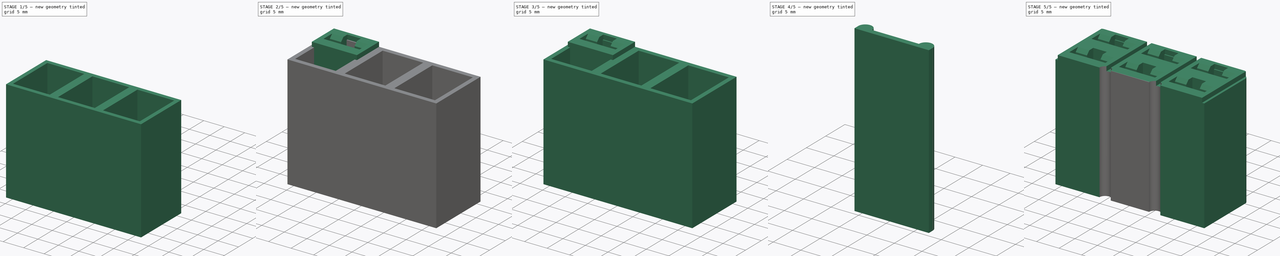
[diagram: build sequence overview — one tinted view per stage of 5, left to right]
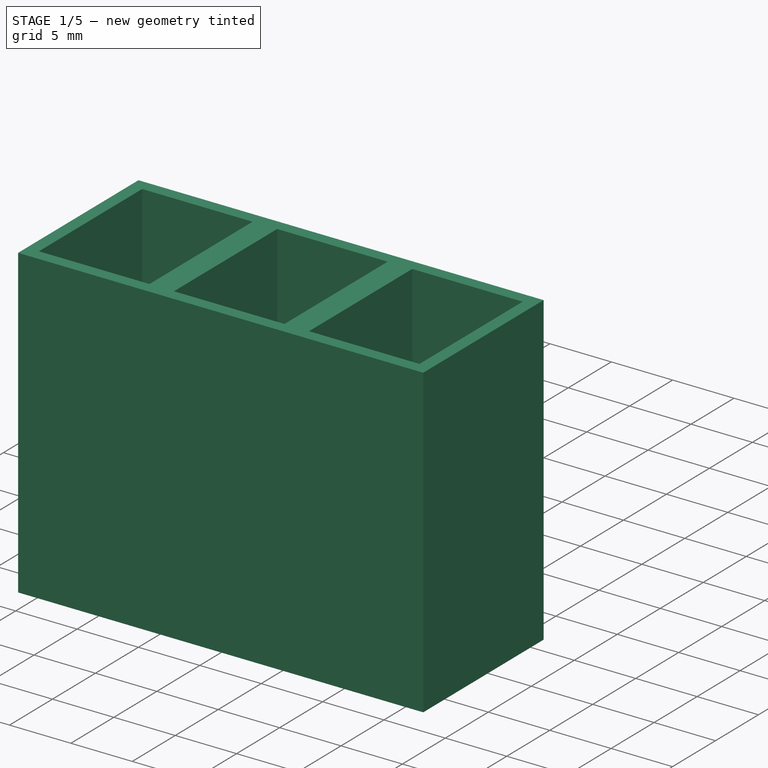
[diagram: stage 1 of 5 — iso view after this stage's code; geometry added in this stage tinted green]
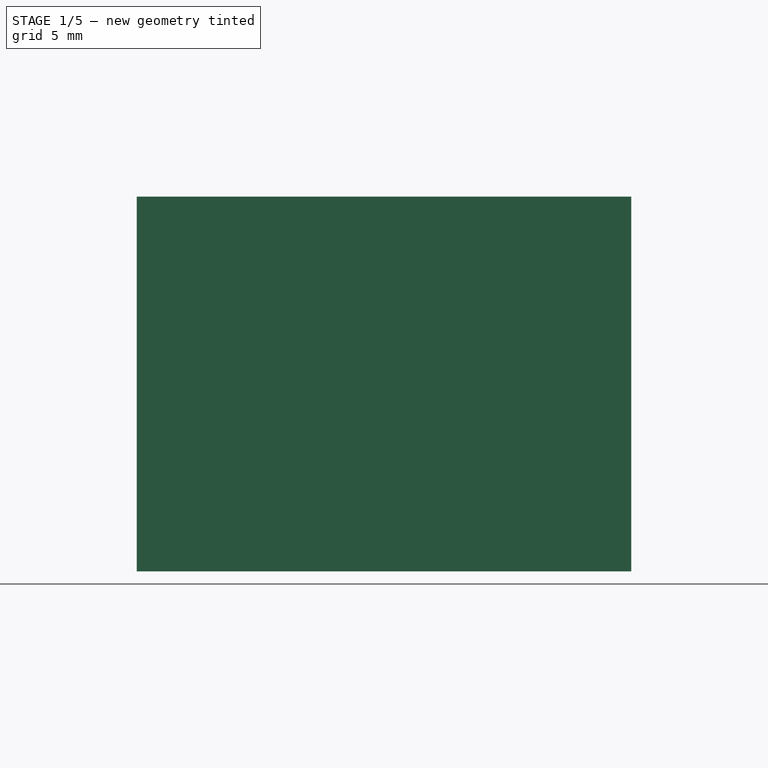
[diagram: stage 1 of 5 — front view after this stage's code; geometry added in this stage tinted green]
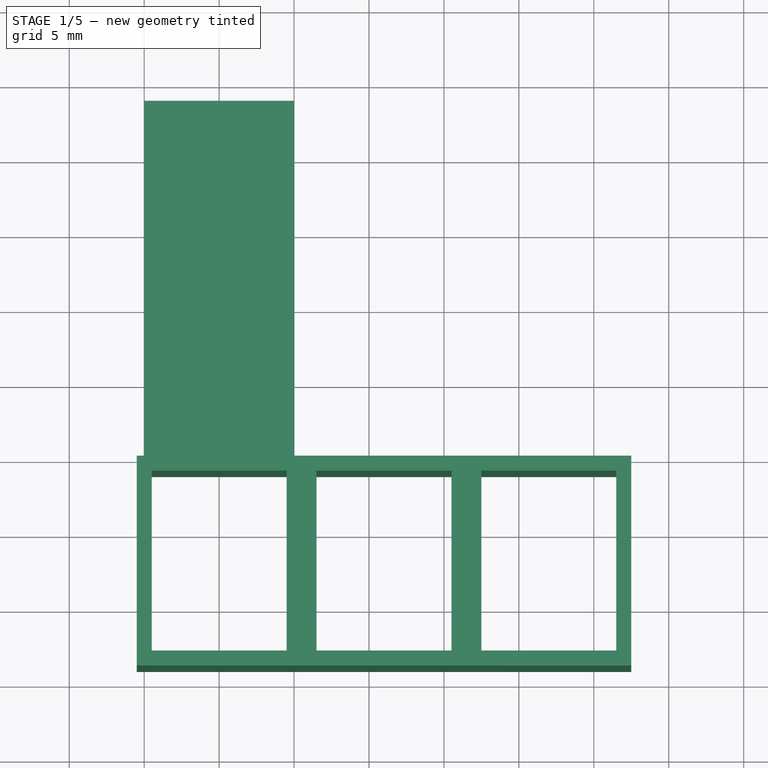
[diagram: stage 1 of 5 — top view after this stage's code; geometry added in this stage tinted green]
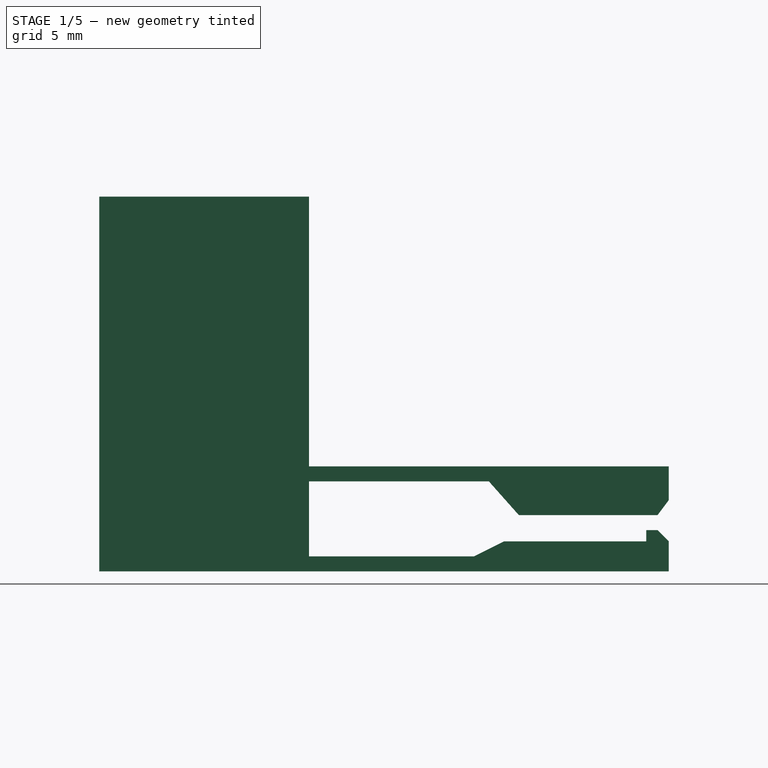
[diagram: stage 1 of 5 — right view after this stage's code; geometry added in this stage tinted green]
FCSTD DOCUMENT  (FreeCAD 1.0R39109 (Git))
Label: DipPlug
License: All rights reserved
LicenseURL: http://en.wikipedia.org/wiki/All_rights_reserved
objects: Sketcher::SketchObject×8, PartDesign::Body×8, PartDesign::FeatureBase×6, PartDesign::Pad×3, PartDesign::Pocket×3, Part::Extrusion×2, Part::Cut×2, Part::MultiFuse×1
note: 59 computed .brp shape members not serialized (recipe doc carries the construction recipe); baked Part::Feature solids carry a one-line shape summary decoded from their .brp

FEATURE [Sketcher::SketchObject] Sketch009  label="SideProfile"
  ArcFitTolerance = 1e-06
  AttachmentSupport = -> [YZ_Plane002]
  FullyConstrained = true
  MakeInternals = false
  MapMode = 5
  Placement = pos=(0,0,0) rot=(0.57735,0.57735,0.57735;2.0944rad)
  sketch-geometry (17):
    g0: LineSegment StartX=0 StartY=0 StartZ=0 EndX=0 EndY=1 EndZ=0
    g1: LineSegment StartX=0 StartY=1 StartZ=0 EndX=11 EndY=1 EndZ=0
    g2: LineSegment StartX=0 StartY=0 StartZ=0 EndX=24 EndY=0 EndZ=0
    g3: LineSegment StartX=11 StartY=1 StartZ=0 EndX=13 EndY=2 EndZ=0
    g4: LineSegment StartX=13 StartY=2 StartZ=0 EndX=22.5 EndY=2 EndZ=0
    g5: LineSegment StartX=22.5 StartY=2 StartZ=0 EndX=22.5 EndY=2.75 EndZ=0
    g6: LineSegment StartX=22.5 StartY=2.75 StartZ=0 EndX=23.25 EndY=2.75 EndZ=0
    g7: LineSegment StartX=23.25 StartY=2.75 StartZ=0 EndX=24 EndY=2 EndZ=0
    g8: LineSegment StartX=24 StartY=2 StartZ=0 EndX=24 EndY=0 EndZ=0
    g9: LineSegment StartX=0 StartY=6 StartZ=0 EndX=12 EndY=6 EndZ=0
    g10: LineSegment StartX=12 StartY=6 StartZ=0 EndX=14 EndY=3.75 EndZ=0
    g11: LineSegment StartX=14 StartY=3.75 StartZ=0 EndX=23.25 EndY=3.75 EndZ=0
    g12: LineSegment StartX=23.25 StartY=3.75 StartZ=0 EndX=24 EndY=4.75 EndZ=0
    g13: LineSegment StartX=24 StartY=4.75 StartZ=0 EndX=24 EndY=7 EndZ=0
    g14: LineSegment StartX=24 StartY=7 StartZ=0 EndX=0 EndY=7 EndZ=0
    g15: LineSegment StartX=0 StartY=7 StartZ=0 EndX=0 EndY=6 EndZ=0
    g16: LineSegment [constr] StartX=23.25 StartY=2.75 StartZ=0 EndX=23.25 EndY=3.75 EndZ=0
  constraints (51):
    c: Coincident(g0,g-1)
    c: PointOnObject(g0,g-2)
    c: Coincident(g1,g0)
    c: Horizontal(g1)
    c: Coincident(g2,g0)
    c: PointOnObject(g2,g-1)
    c: Coincident(g3,g1)
    c: Coincident(g4,g3)
    c: Horizontal(g4)
    c: Coincident(g5,g4)
    c: Vertical(g5)
    c: Coincident(g6,g5)
    c: Horizontal(g6)
    c: Coincident(g7,g6)
    c: Coincident(g8,g7)
    c: Vertical(g8)
    c: Coincident(g2,g8)
    c: DistanceX(g2,g2) = 24
    c: Distance(g0,g0) = 1
    c: Distance(g1,g1) = 11
    c: DistanceX(g0,g3) = 13
    c: DistanceY(g0,g3) = 2
    c: DistanceY(g8,g8) = 2
    c: DistanceY(g2,g6) = 2.75
    c: DistanceX(g6,g7) = 0.75
    c: PointOnObject(g9,g-2)
    c: Horizontal(g9)
    c: Coincident(g10,g9)
    c: Coincident(g11,g10)
    c: Horizontal(g11)
    c: Coincident(g12,g11)
    c: Coincident(g13,g12)
    c: Vertical(g13)
    c: Coincident(g14,g13)
    c: PointOnObject(g14,g-2)
    c: Horizontal(g14)
    c: Coincident(g15,g14)
    c: Coincident(g15,g9)
    c: Distance(g15,g15) = 1
    c: DistanceX(g9,g9) = 12
    c: DistanceX(g9,g10) = 14
    c: Vertical(g11,g6)
    c: DistanceY(g11,g12) = 1
    c: DistanceY(g10,g9) = 2.25
    c: Vertical(g13,g2)
    c: DistanceY(g0,g9) = 5
    c: DistanceX(g4,g4) = 9.5
    c: Coincident(g16,g6)
    c: Coincident(g16,g11)
    c: DistanceY(g16,g16) = 1
    c: DistanceY(g4,g11) = 1.75
FEATURE [PartDesign::Pad] Pad003  label="SideProfilePad"
  Direction = (1,0,0)
  Length = 10
  Length2 = 10
  Placement = pos=(0,0,0) rot=(1,1,1;2.0944rad)
  Profile = -> Sketch009
  ReferenceAxis = -> Sketch009 [N_Axis]
  Refine = true
  Suppressed = false
  Type = 0
FEATURE [PartDesign::Body] Body007  label="Pin6"
  AllowCompound = false
  Group = -> [Clone005]
  Origin = -> Origin007
  Placement = pos=(22,-7,0) rot=(0,0,1;0rad)
  Tip = -> Clone005
FEATURE [Sketcher::SketchObject] Sketch
  ArcFitTolerance = 1e-06
  AttachmentSupport = -> [XY_Plane008]
  FullyConstrained = true
  MakeInternals = false
  MapMode = 5
  sketch-geometry (4):
    g0: LineSegment StartX=-0.5 StartY=0 StartZ=0 EndX=-0.5 EndY=-14 EndZ=0
    g1: LineSegment StartX=-0.5 StartY=-14 StartZ=0 EndX=32.5 EndY=-14 EndZ=0
    g2: LineSegment StartX=32.5 StartY=-14 StartZ=0 EndX=32.5 EndY=0 EndZ=0
    g3: LineSegment StartX=32.5 StartY=0 StartZ=0 EndX=-0.5 EndY=0 EndZ=0
  constraints (12):
    c: Coincident(g0,g1)
    c: Coincident(g1,g2)
    c: Coincident(g2,g3)
    c: Coincident(g3,g0)
    c: Vertical(g0)
    c: Vertical(g2)
    c: Horizontal(g1)
    c: Horizontal(g3)
    c: DistanceX(g1,g1) = 33
    c: DistanceY(g2,g2) = 14
    c: PointOnObject(g0,g-1)
    c: Distance(g-1,g0) = 0.5
FEATURE [PartDesign::Pad] Pad
  Direction = (0,0,1)
  Length = 25
  Length2 = 10
  Profile = -> Sketch
  ReferenceAxis = -> Sketch [N_Axis]
  Refine = true
  Suppressed = false
  Type = 0
FEATURE [Sketcher::SketchObject] Sketch012
  ArcFitTolerance = 1e-06
  AttachmentSupport = -> [XY_Plane008]
  ExternalGeometry = -> [Pad]
  FullyConstrained = true
  MakeInternals = false
  MapMode = 5
  sketch-geometry (12):
    g0: LineSegment StartX=0.5 StartY=-1 StartZ=0 EndX=0.5 EndY=-13 EndZ=0
    g1: LineSegment StartX=0.5 StartY=-13 StartZ=0 EndX=9.5 EndY=-13 EndZ=0
    g2: LineSegment StartX=9.5 StartY=-13 StartZ=0 EndX=9.5 EndY=-1 EndZ=0
    g3: LineSegment StartX=9.5 StartY=-1 StartZ=0 EndX=0.5 EndY=-1 EndZ=0
    g4: LineSegment StartX=11.5 StartY=-1 StartZ=0 EndX=11.5 EndY=-13 EndZ=0
    g5: LineSegment StartX=11.5 StartY=-13 StartZ=0 EndX=20.5 EndY=-13 EndZ=0
    g6: LineSegment StartX=20.5 StartY=-13 StartZ=0 EndX=20.5 EndY=-1 EndZ=0
    g7: LineSegment StartX=20.5 StartY=-1 StartZ=0 EndX=11.5 EndY=-1 EndZ=0
    g8: LineSegment StartX=22.5 StartY=-1 StartZ=0 EndX=22.5 EndY=-13 EndZ=0
    g9: LineSegment StartX=22.5 StartY=-13 StartZ=0 EndX=31.5 EndY=-13 EndZ=0
    g10: LineSegment StartX=31.5 StartY=-13 StartZ=0 EndX=31.5 EndY=-1 EndZ=0
    g11: LineSegment StartX=31.5 StartY=-1 StartZ=0 EndX=22.5 EndY=-1 EndZ=0
  constraints (36):
    c: Coincident(g0,g1)
    c: Coincident(g1,g2)
    c: Coincident(g2,g3)
    c: Coincident(g3,g0)
    c: Vertical(g2)
    c: Horizontal(g1)
    c: Horizontal(g3)
    c: DistanceX(g3,g3) = 9
    c: DistanceY(g-3,g0) = 1
    c: Coincident(g4,g5)
    c: Coincident(g5,g6)
    c: Coincident(g6,g7)
    c: Coincident(g7,g4)
    c: Vertical(g4)
    c: Vertical(g6)
    c: Horizontal(g5)
    c: Horizontal(g7)
    c: Coincident(g8,g9)
    c: Coincident(g9,g10)
    c: Coincident(g10,g11)
    c: Coincident(g11,g8)
    c: Vertical(g8)
    c: Vertical(g10)
    c: Horizontal(g9)
    c: Horizontal(g11)
    c: Horizontal(g8,g4)
    c: Horizontal(g4,g0)
    c: Horizontal(g8,g4)
    c: Horizontal(g4,g0)
    c: Equal(g1,g5)
    c: Equal(g5,g9)
    c: Distance(g1,g4) = 2
    c: Distance(g8,g5) = 2
    c: DistanceX(g-1,g0) = 0.5
    c: DistanceY(g0,g-1) = 1
    c: Vertical(g0)
FEATURE [PartDesign::Pocket] Pocket
  BaseFeature = -> Pad
  Direction = (0,0,-1)
  Length = 5
  Length2 = 5
  Profile = -> Sketch012
  ReferenceAxis = -> Sketch012 [N_Axis]
  Refine = true
  Reversed = true
  Suppressed = false
  Type = 1
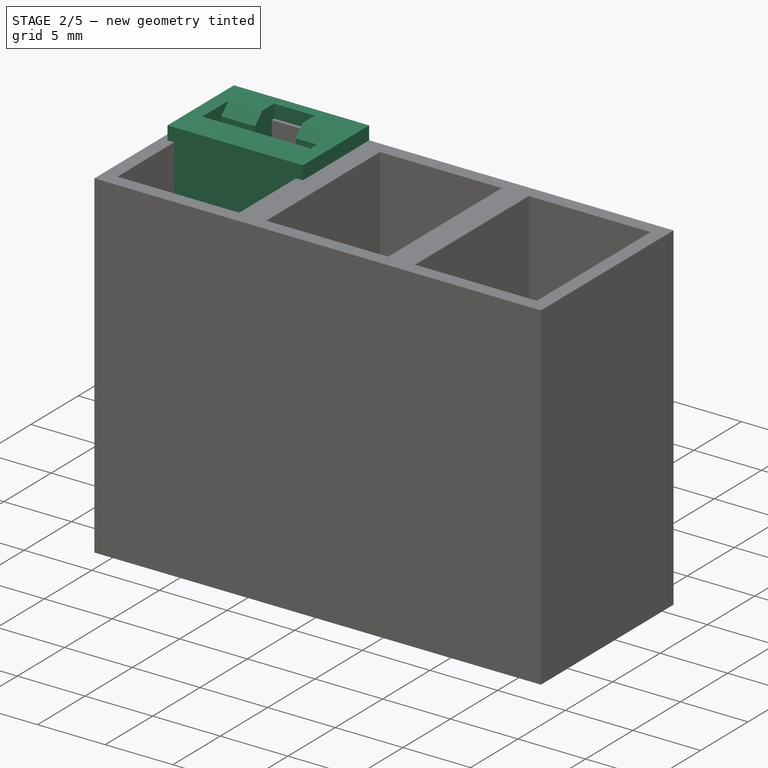
[diagram: stage 2 of 5 — iso view after this stage's code; geometry added in this stage tinted green]
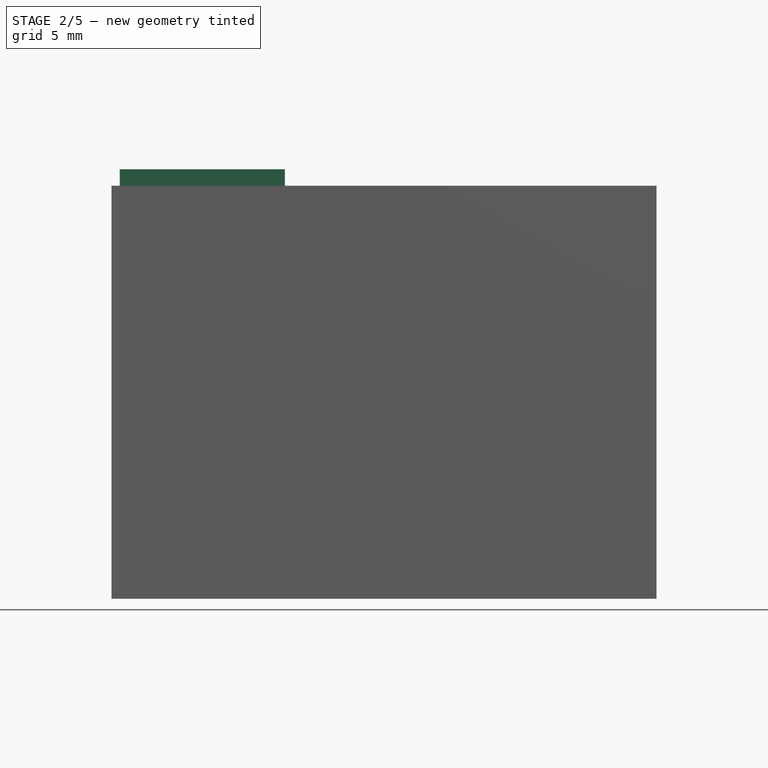
[diagram: stage 2 of 5 — front view after this stage's code; geometry added in this stage tinted green]
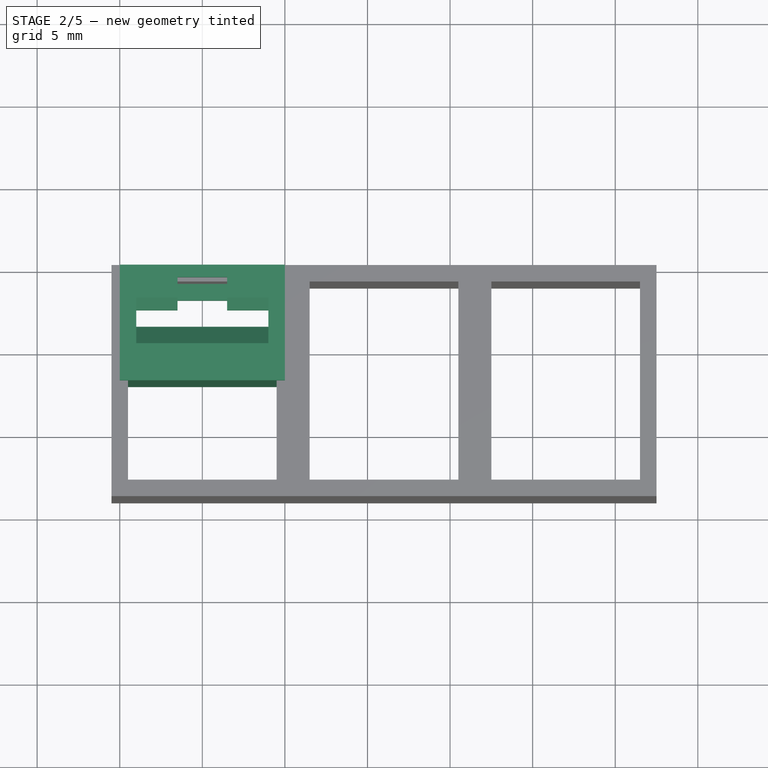
[diagram: stage 2 of 5 — top view after this stage's code; geometry added in this stage tinted green]
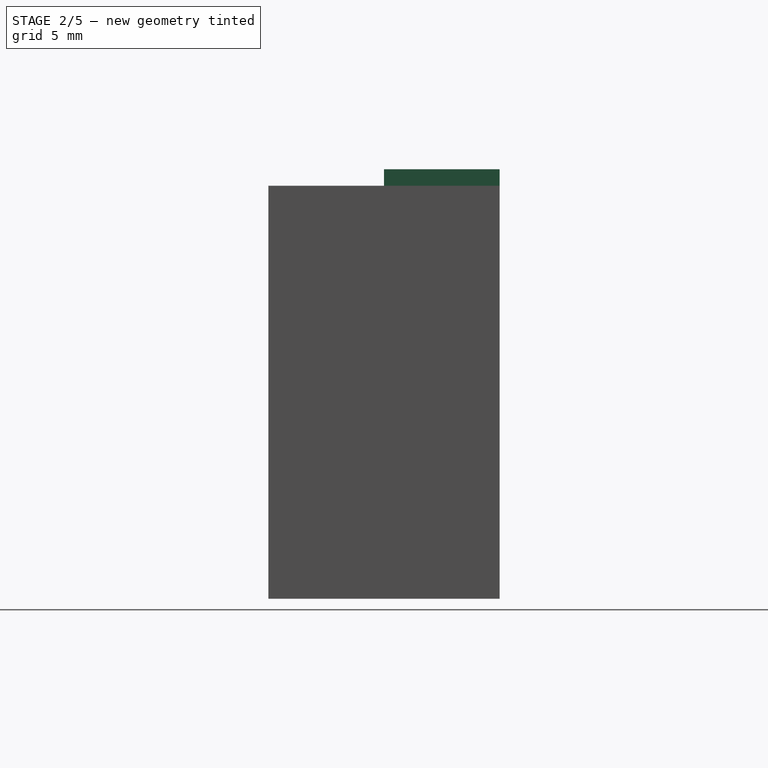
[diagram: stage 2 of 5 — right view after this stage's code; geometry added in this stage tinted green]
FEATURE [Sketcher::SketchObject] Sketch010  label="Sides"
  ArcFitTolerance = 1e-06
  AttachmentSupport = -> [XY_Plane002]
  ExternalGeometry = -> [Pad003]
  FullyConstrained = true
  MakeInternals = false
  MapMode = 5
  sketch-geometry (8):
    g0: LineSegment StartX=-3e-15 StartY=24 StartZ=0 EndX=-3e-15 EndY=0 EndZ=0
    g1: LineSegment StartX=-3e-15 StartY=0 StartZ=0 EndX=1 EndY=0 EndZ=0
    g2: LineSegment StartX=1 StartY=0 StartZ=0 EndX=1 EndY=24 EndZ=0
    g3: LineSegment StartX=1 StartY=24 StartZ=0 EndX=-3e-15 EndY=24 EndZ=0
    g4: LineSegment StartX=10 StartY=24 StartZ=0 EndX=9 EndY=24 EndZ=0
    g5: LineSegment StartX=9 StartY=24 StartZ=0 EndX=9 EndY=0 EndZ=0
    g6: LineSegment StartX=9 StartY=0 StartZ=0 EndX=10 EndY=0 EndZ=0
    g7: LineSegment StartX=10 StartY=0 StartZ=0 EndX=10 EndY=24 EndZ=0
  constraints (22):
    c: Coincident(g0,g1)
    c: Coincident(g1,g2)
    c: Coincident(g2,g3)
    c: Coincident(g3,g0)
    c: Vertical(g0)
    c: Vertical(g2)
    c: Horizontal(g1)
    c: Horizontal(g3)
    c: Coincident(g0,g-3)
    c: PointOnObject(g1,g-1)
    c: Coincident(g4,g5)
    c: Coincident(g5,g6)
    c: Coincident(g6,g7)
    c: Coincident(g7,g4)
    c: Horizontal(g4)
    c: Horizontal(g6)
    c: Vertical(g5)
    c: Vertical(g7)
    c: Coincident(g4,g-4)
    c: PointOnObject(g5,g-1)
    c: Distance(g6,g6) = 1
    c: Distance(g1,g1) = 1
FEATURE [PartDesign::Pad] Pad004  label="SidesPad"
  BaseFeature = -> Pad003
  Direction = (0,0,1)
  Length = 6
  Length2 = 10
  Placement = pos=(0,0,0) rot=(1,1,1;2.0944rad)
  Profile = -> Sketch010
  ReferenceAxis = -> Sketch010 [N_Axis]
  Refine = true
  Suppressed = false
  Type = 0
FEATURE [Sketcher::SketchObject] Sketch011  label="Slot"
  ArcFitTolerance = 1e-06
  AttachmentSupport = -> [Pad003]
  ExternalGeometry = -> [Pad003]
  FullyConstrained = true
  MakeInternals = false
  MapMode = 5
  Placement = pos=(5.3e-15,24,-2.7e-15) rot=(0.57735,0.57735,0.57735;4.18879rad)
  sketch-geometry (6):
    g0: LineSegment StartX=0.75 StartY=6.5 StartZ=0 EndX=0.75 EndY=3.5 EndZ=0
    g1: LineSegment StartX=0.75 StartY=3.5 StartZ=0 EndX=2.75 EndY=3.5 EndZ=0
    g2: LineSegment StartX=2.75 StartY=3.5 StartZ=0 EndX=2.75 EndY=6.5 EndZ=0
    g3: LineSegment StartX=2.75 StartY=6.5 StartZ=0 EndX=0.75 EndY=6.5 EndZ=0
    g4: GeomPoint [constr] X=2.75 Y=5 Z=0
    g5: GeomPoint [constr] X=2.75 Y=5 Z=0
  constraints (13):
    c: Coincident(g0,g1)
    c: Coincident(g1,g2)
    c: Coincident(g2,g3)
    c: Coincident(g3,g0)
    c: Vertical(g0)
    c: Vertical(g2)
    c: Horizontal(g1)
    c: Horizontal(g3)
    c: Distance(g0,g0) = 3
    c: Symmetric(g1,g2,g4)
    c: Symmetric(g-3,g-3,g5)
    c: Coincident(g4,g5)
    c: Distance(g3,g3) = 2
FEATURE [PartDesign::Pocket] Pocket005  label="SlotPocket"
  BaseFeature = -> Pad004
  Direction = (0,-1,0)
  Length = 9.5
  Length2 = 5
  Placement = pos=(0,0,0) rot=(1,1,1;2.0944rad)
  Profile = -> Sketch011
  ReferenceAxis = -> Sketch011 [N_Axis]
  Refine = true
  Suppressed = false
  Type = 0
FEATURE [Sketcher::SketchObject] Sketch003  label="PointTrim"
  ArcFitTolerance = 1e-06
  AttachmentSupport = -> [XZ_Plane002]
  ExternalGeometry = -> [Pocket005]
  FullyConstrained = true
  MakeInternals = false
  MapMode = 5
  Placement = pos=(0,0,0) rot=(1,0,0;1.5708rad)
  sketch-geometry (7):
    g0: LineSegment StartX=1 StartY=5 StartZ=0 EndX=4.23 EndY=5 EndZ=0
    g1: LineSegment StartX=4.23 StartY=5 StartZ=0 EndX=5 EndY=3.75 EndZ=0
    g2: LineSegment StartX=5 StartY=3.75 StartZ=0 EndX=5.77 EndY=5 EndZ=0
    g3: LineSegment StartX=5.77 StartY=5 StartZ=0 EndX=9 EndY=5 EndZ=0
    g4: LineSegment StartX=1 StartY=5 StartZ=0 EndX=1 EndY=3.5 EndZ=0
    g5: LineSegment StartX=1 StartY=3.5 StartZ=0 EndX=9 EndY=3.5 EndZ=0
    g6: LineSegment StartX=9 StartY=3.5 StartZ=0 EndX=9 EndY=5 EndZ=0
  constraints (22):
    c: Horizontal(g0)
    c: Coincident(g1,g0)
    c: Coincident(g2,g1)
    c: Coincident(g3,g2)
    c: Horizontal(g3)
    c: DistanceY(g1,g0) = 1.25
    c: DistanceX(g0,g0) = 3.23
    c: Equal(g3,g0)
    c: Equal(g2,g1)
    c: Coincident(g4,g0)
    c: Vertical(g4)
    c: Coincident(g5,g4)
    c: Horizontal(g5)
    c: Coincident(g6,g5)
    c: Coincident(g6,g3)
    c: Vertical(g6)
    c: DistanceY(g6,g6) = 1.5
    c: Vertical(g0,g-3)
    c: Vertical(g3,g-3)
    c: Horizontal(g0,g2)
    c: DistanceY(g0,g-3) = 1
    c: DistanceY(g-4,g3) = 3
FEATURE [PartDesign::Pocket] Pocket006  label="PointPocket"
  BaseFeature = -> Pocket005
  Direction = (0,1,-2e-16)
  Length = 22.5
  Length2 = 5
  Placement = pos=(0,0,0) rot=(1,1,1;2.0944rad)
  Profile = -> Sketch003
  ReferenceAxis = -> Sketch003 [N_Axis]
  Refine = true
  Suppressed = false
  Type = 0
FEATURE [PartDesign::Body] Body006  label="Pin5"
  AllowCompound = false
  Group = -> [Clone004]
  Origin = -> Origin006
  Placement = pos=(11,-7,0) rot=(0,0,1;0rad)
  Tip = -> Clone004
FEATURE [PartDesign::FeatureBase] Clone005
  BaseFeature = -> Body002
  Placement = pos=(0,0,2) rot=(1,0,0;1.5708rad)
  Suppressed = false
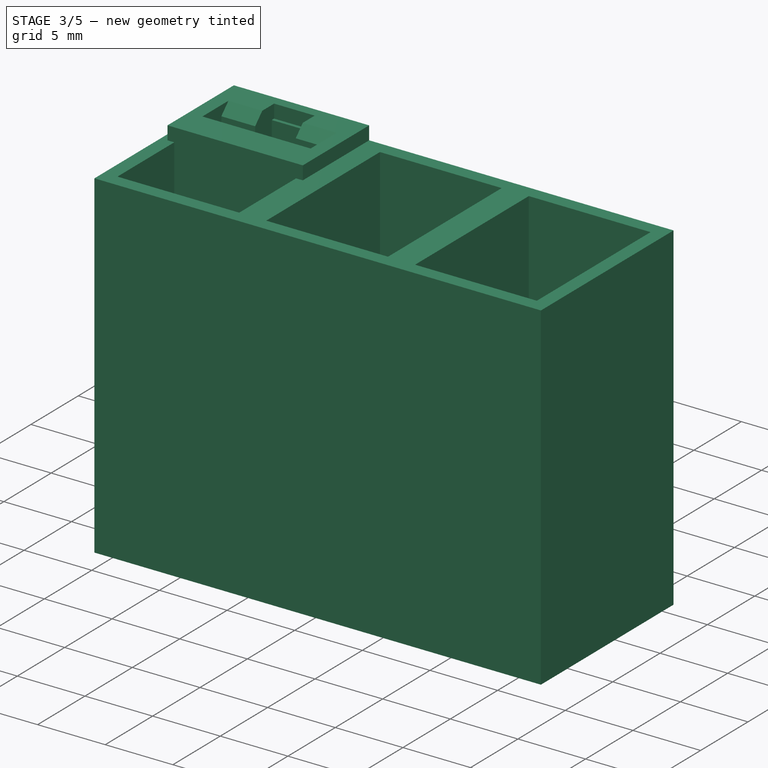
[diagram: stage 3 of 5 — iso view after this stage's code; geometry added in this stage tinted green]
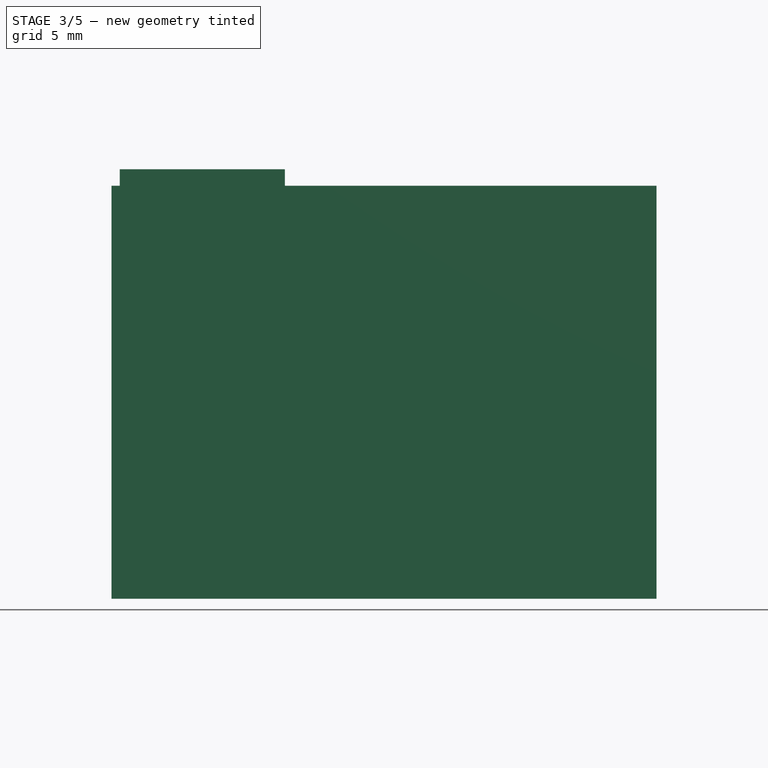
[diagram: stage 3 of 5 — front view after this stage's code; geometry added in this stage tinted green]
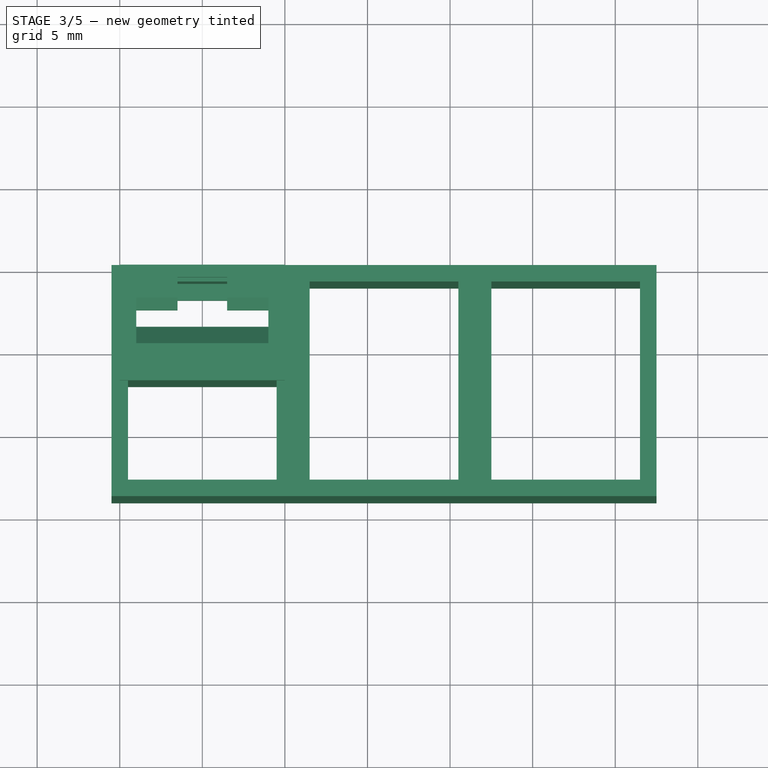
[diagram: stage 3 of 5 — top view after this stage's code; geometry added in this stage tinted green]
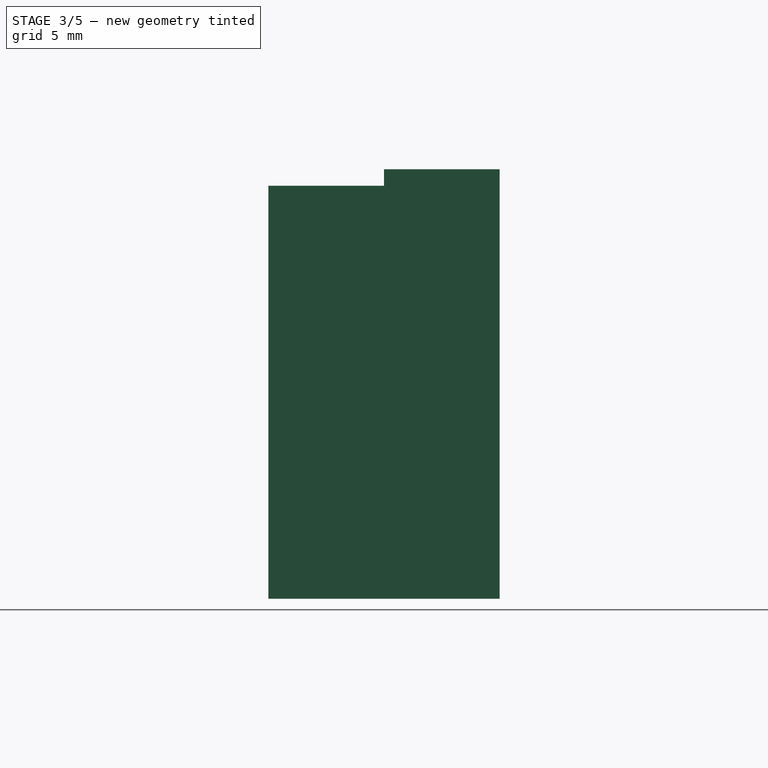
[diagram: stage 3 of 5 — right view after this stage's code; geometry added in this stage tinted green]
FEATURE [PartDesign::Body] Body003  label="Pin2"
  AllowCompound = false
  Group = -> [Clone001]
  Origin = -> Origin003
  Placement = pos=(11,0,0) rot=(0,0,1;0rad)
  Tip = -> Clone001
FEATURE [PartDesign::FeatureBase] Clone002
  BaseFeature = -> Body002
  Placement = pos=(0,0,2) rot=(1,0,0;1.5708rad)
  Suppressed = false
FEATURE [PartDesign::Body] Body004  label="Pin3"
  AllowCompound = false
  Group = -> [Clone002]
  Origin = -> Origin004
  Placement = pos=(22,0,0) rot=(0,0,1;0rad)
  Tip = -> Clone002
FEATURE [PartDesign::FeatureBase] Clone003
  BaseFeature = -> Body002
  Placement = pos=(0,0,2) rot=(1,0,0;1.5708rad)
  Suppressed = false
FEATURE [PartDesign::Body] Body005  label="Pin4"
  AllowCompound = false
  Group = -> [Clone003]
  Origin = -> Origin005
  Placement = pos=(0,-7,0) rot=(0,0,1;0rad)
  Tip = -> Clone003
FEATURE [PartDesign::FeatureBase] Clone004
  BaseFeature = -> Body002
  Placement = pos=(0,0,2) rot=(1,0,0;1.5708rad)
  Suppressed = false
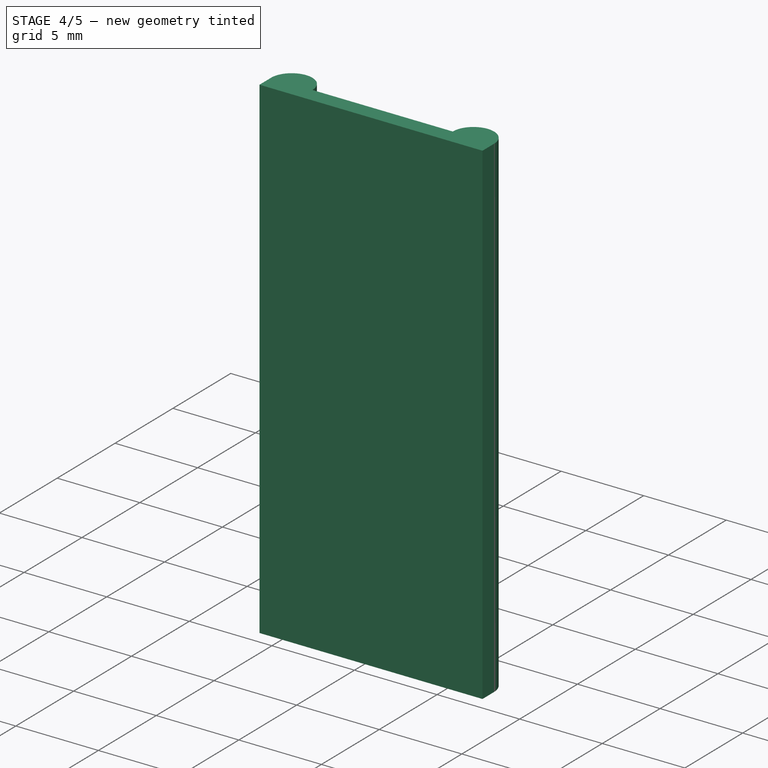
[diagram: stage 4 of 5 — iso view after this stage's code; geometry added in this stage tinted green]
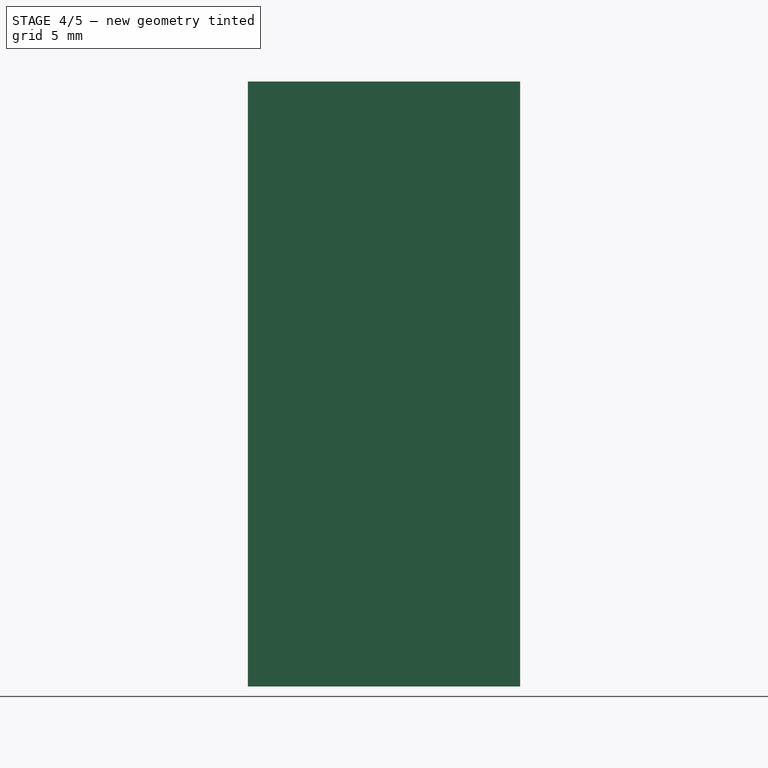
[diagram: stage 4 of 5 — front view after this stage's code; geometry added in this stage tinted green]
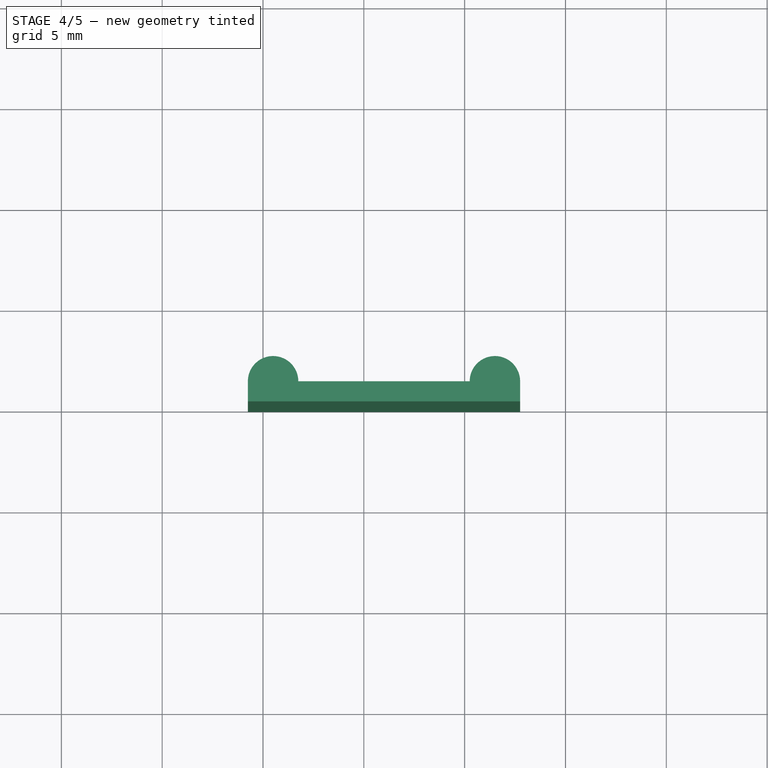
[diagram: stage 4 of 5 — top view after this stage's code; geometry added in this stage tinted green]
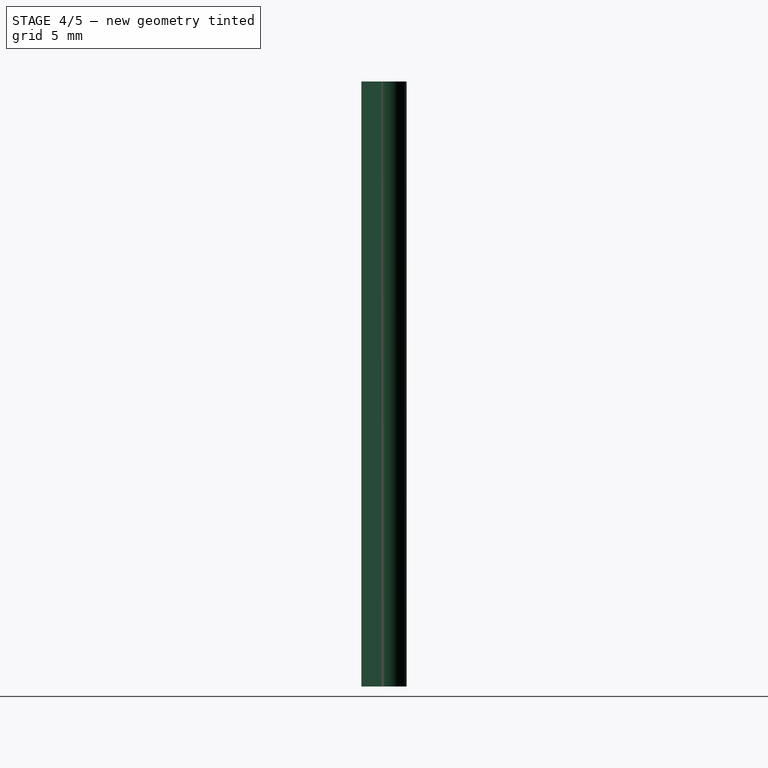
[diagram: stage 4 of 5 — right view after this stage's code; geometry added in this stage tinted green]
FEATURE [PartDesign::Body] Body002  label="PinHousing"
  AllowCompound = true
  Group = -> [Sketch009,Pad003,Sketch010,Pad004,Sketch011,Pocket005,Sketch003,Pocket006]
  Origin = -> Origin002
  Placement = pos=(0,0,2) rot=(1,0,0;1.5708rad)
  Tip = -> Pocket006
FEATURE [PartDesign::FeatureBase] Clone
  BaseFeature = -> Body002
  Placement = pos=(0,0,2) rot=(1,0,0;1.5708rad)
  Suppressed = false
FEATURE [PartDesign::Body] Body  label="Pin1"
  AllowCompound = false
  Group = -> [Clone]
  Origin = -> Origin
  Tip = -> Clone
FEATURE [PartDesign::FeatureBase] Clone001
  BaseFeature = -> Body002
  Placement = pos=(0,0,2) rot=(1,0,0;1.5708rad)
  Suppressed = false
FEATURE [PartDesign::Body] Body008  label="Body"
  AllowCompound = false
  Group = -> [Sketch,Pad,Sketch012,Pocket]
  Origin = -> Origin008
  Tip = -> Pocket
FEATURE [Part::MultiFuse] Fusion  label="CombinedPins"
  Shapes = -> [Body008,Body007,Body006,Body005,Body004,Body003,Body]
FEATURE [Sketcher::SketchObject] Sketch013
  ArcFitTolerance = 1e-06
  ExternalGeometry = -> [Fusion]
  FullyConstrained = true
  MakeInternals = false
  sketch-geometry (6):
    g0: ArcOfCircle CenterX=10.5 CenterY=-14 CenterZ=0 NormalX=0 NormalY=0 NormalZ=1 AngleXU=0 Radius=1.25 StartAngle=6.28319 EndAngle=9.42478
    g1: ArcOfCircle CenterX=21.5 CenterY=-14 CenterZ=0 NormalX=0 NormalY=0 NormalZ=1 AngleXU=0 Radius=1.25 StartAngle=6.28319 EndAngle=9.42478
    g2: LineSegment StartX=9.25 StartY=-14 StartZ=0 EndX=9.25 EndY=-15 EndZ=0
    g3: LineSegment StartX=9.25 StartY=-15 StartZ=0 EndX=22.75 EndY=-15 EndZ=0
    g4: LineSegment StartX=22.75 StartY=-15 StartZ=0 EndX=22.75 EndY=-14 EndZ=0
    g5: LineSegment StartX=11.75 StartY=-14 StartZ=0 EndX=20.25 EndY=-14 EndZ=0
  constraints (20):
    c: Angle(g0) = 3.14159
    c: Radius(g0) = 1.25
    c: PointOnObject(g0,g-3)
    c: Horizontal(g0,g0)
    c: DistanceX(g-1,g0) = 10.5
    c: Angle(g1) = 3.14159
    c: Equal(g1,g0)
    c: Horizontal(g1,g1)
    c: PointOnObject(g1,g-4)
    c: DistanceX(g-1,g1) = 21.5
    c: Coincident(g2,g0)
    c: Vertical(g2)
    c: Coincident(g3,g2)
    c: Horizontal(g3)
    c: Coincident(g4,g3)
    c: Coincident(g4,g1)
    c: Vertical(g4)
    c: Coincident(g5,g0)
    c: Coincident(g5,g1)
    c: Distance(g4,g4) = 1
FEATURE [Part::Extrusion] Extrude
  Base = -> Sketch013
  Dir = (0,0,1)
  DirMode = 2
  FaceMakerClass = Part::FaceMakerBullseye
  FaceMakerMode = 3
  LengthFwd = 30
  LengthRev = 0
  Solid = true
  Symmetric = false
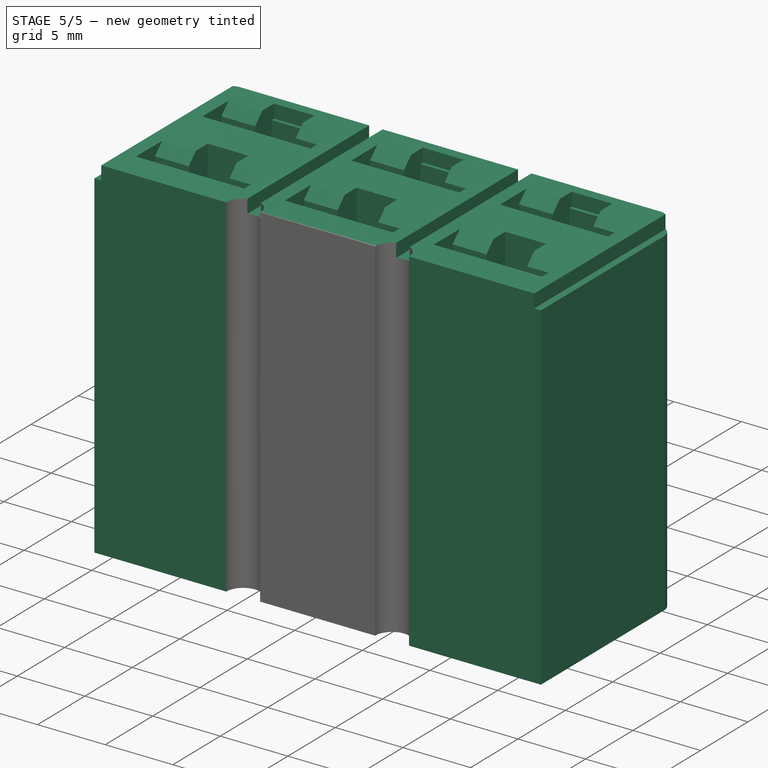
[diagram: stage 5 of 5 — iso view after this stage's code; geometry added in this stage tinted green]
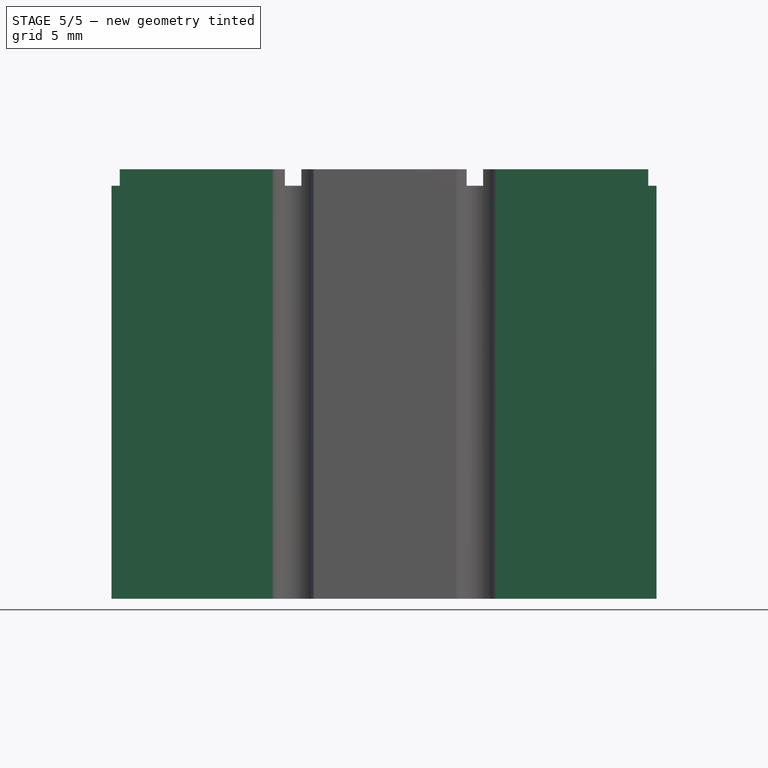
[diagram: stage 5 of 5 — front view after this stage's code; geometry added in this stage tinted green]
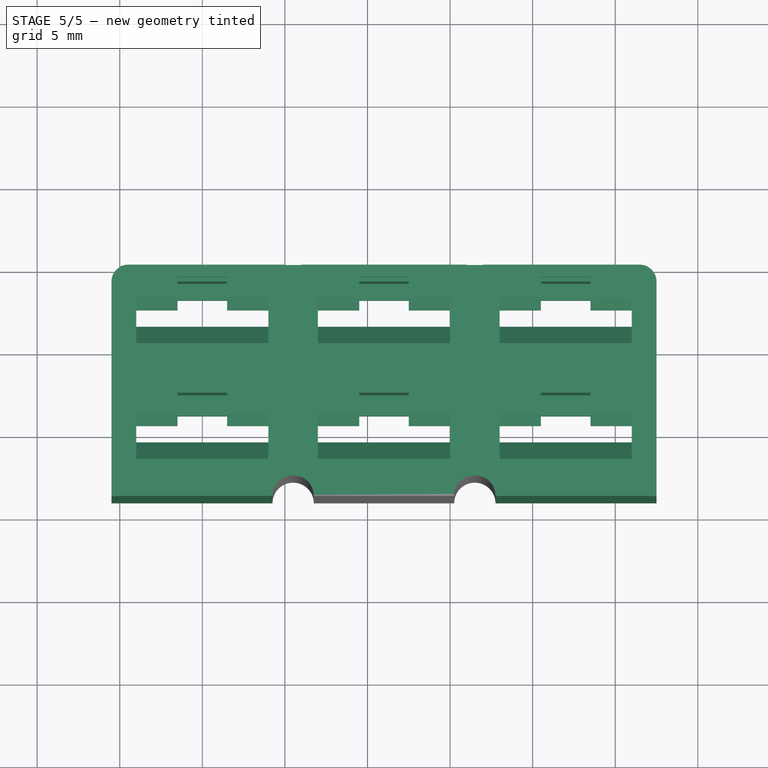
[diagram: stage 5 of 5 — top view after this stage's code; geometry added in this stage tinted green]
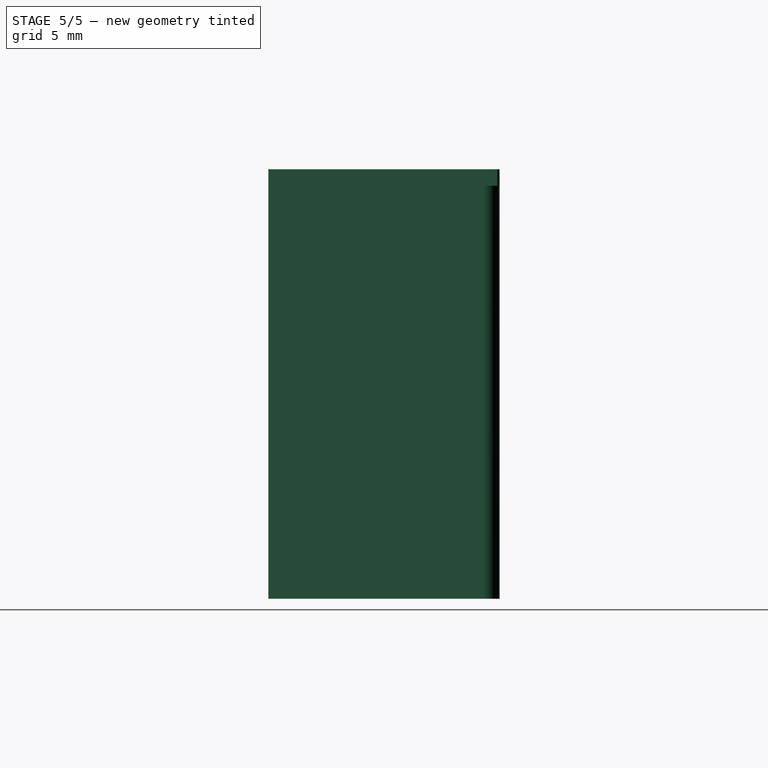
[diagram: stage 5 of 5 — right view after this stage's code; geometry added in this stage tinted green]
FEATURE [Part::Cut] Cut  label="WithGiudeSlot"
  Base = -> Fusion
  Tool = -> Extrude
FEATURE [Sketcher::SketchObject] Sketch014
  ArcFitTolerance = 1e-06
  ExternalGeometry = -> [Cut]
  FullyConstrained = true
  MakeInternals = false
  Placement = pos=(0,0,0) rot=(1,0,0;3.14159rad)
  sketch-geometry (8):
    g0: ArcOfCircle CenterX=0.5 CenterY=1 CenterZ=0 NormalX=0 NormalY=0 NormalZ=1 AngleXU=0 Radius=1 StartAngle=3.14159 EndAngle=4.71239
    g1: ArcOfCircle CenterX=31.5 CenterY=1 CenterZ=0 NormalX=0 NormalY=0 NormalZ=1 AngleXU=0 Radius=1 StartAngle=4.71239 EndAngle=6.28318
    g2: LineSegment StartX=-0.5 StartY=1 StartZ=0 EndX=-5.5 EndY=1 EndZ=0
    g3: LineSegment StartX=-5.5 StartY=1 StartZ=0 EndX=-5.5 EndY=-4 EndZ=0
    g4: LineSegment StartX=-5.5 StartY=-4 StartZ=0 EndX=37.5 EndY=-4 EndZ=0
    g5: LineSegment StartX=32.5 StartY=1 StartZ=0 EndX=37.5 EndY=1 EndZ=0
    g6: LineSegment StartX=37.5 StartY=1 StartZ=0 EndX=37.5 EndY=-4 EndZ=0
    g7: LineSegment StartX=0.5 StartY=0 StartZ=0 EndX=31.5 EndY=4e-16 EndZ=0
  constraints (25):
    c: Angle(g0) = 1.5708
    c: Diameter(g0) = 2
    c: PointOnObject(g0,g-3)
    c: PointOnObject(g0,g-1)
    c: Distance(g-3,g0) = 1
    c: Angle(g1) = 1.5708
    c: Equal(g1,g0)
    c: PointOnObject(g1,g-4)
    c: Distance(g-4,g1) = 1
    c: Coincident(g2,g0)
    c: Horizontal(g2)
    c: Coincident(g3,g2)
    c: Vertical(g3)
    c: Coincident(g4,g3)
    c: Horizontal(g4)
    c: Coincident(g5,g1)
    c: Horizontal(g5)
    c: Coincident(g6,g5)
    c: Vertical(g6)
    c: Coincident(g6,g4)
    c: DistanceX(g5,g5) = 5
    c: Equal(g5,g2)
    c: DistanceY(g6,g6) = 5
    c: Tangent(g7,g0) = -1.5708
    c: Coincident(g7,g1)
FEATURE [Part::Extrusion] Extrude001  label="Rounded"
  Base = -> Sketch014
  Dir = (0,0,-1)
  DirMode = 2
  FaceMakerClass = Part::FaceMakerBullseye
  FaceMakerMode = 3
  LengthFwd = 30
  LengthRev = 0
  Reversed = true
  Solid = true
  Symmetric = false
FEATURE [Part::Cut] Cut001  label="FinalDipPlug"
  Base = -> Cut
  Tool = -> Extrude001
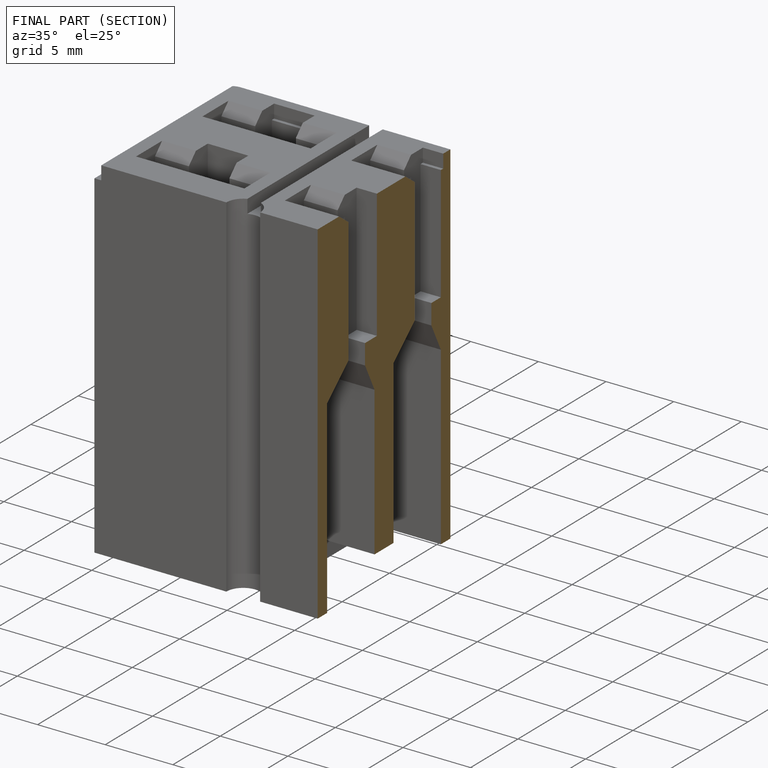
[diagram: finished part — half-section view (interior)]
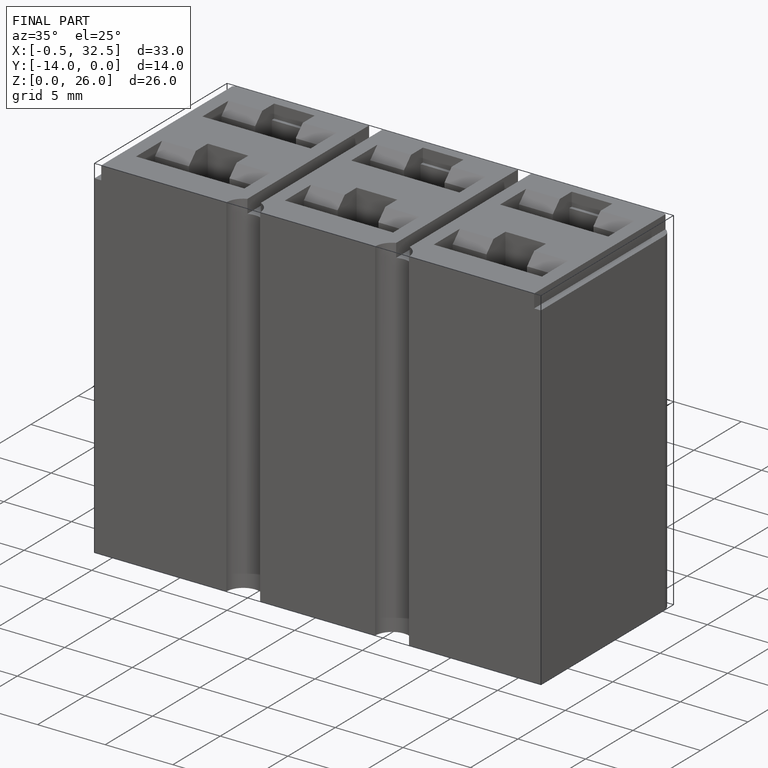
[diagram: finished part — iso view with bounding-box wireframe]
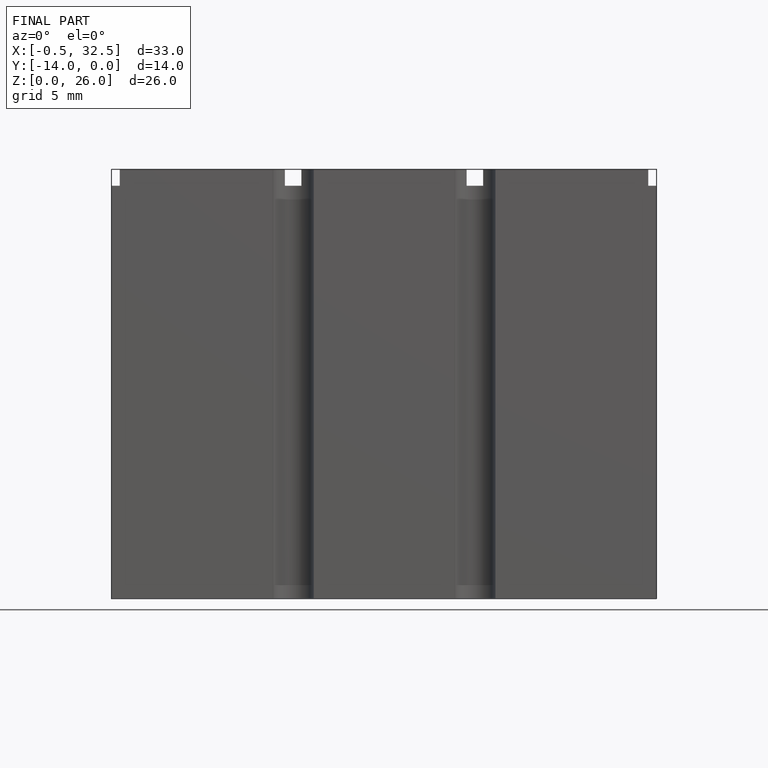
[diagram: finished part — front view with bounding-box wireframe]
